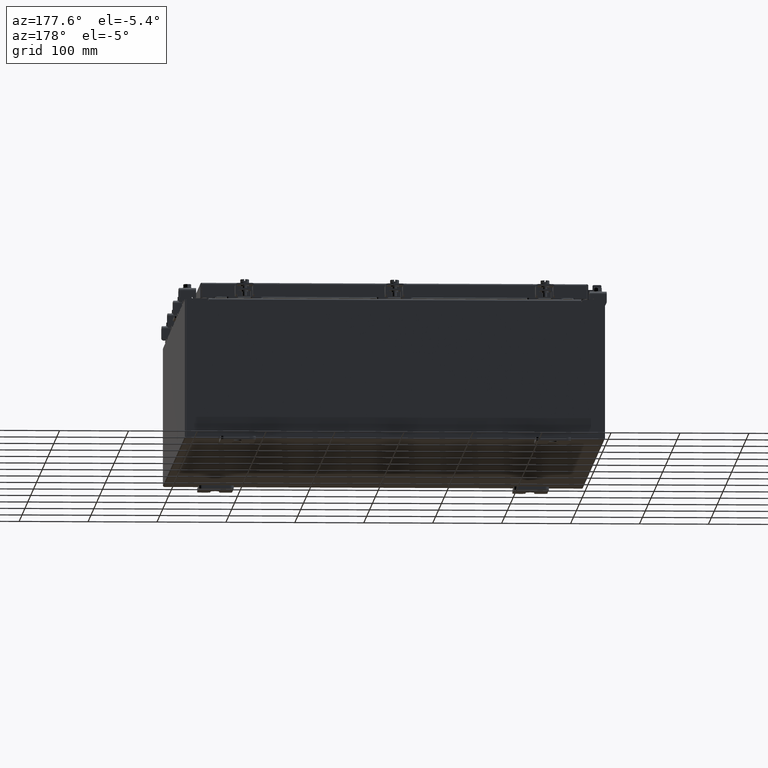
[diagram: clean part render]
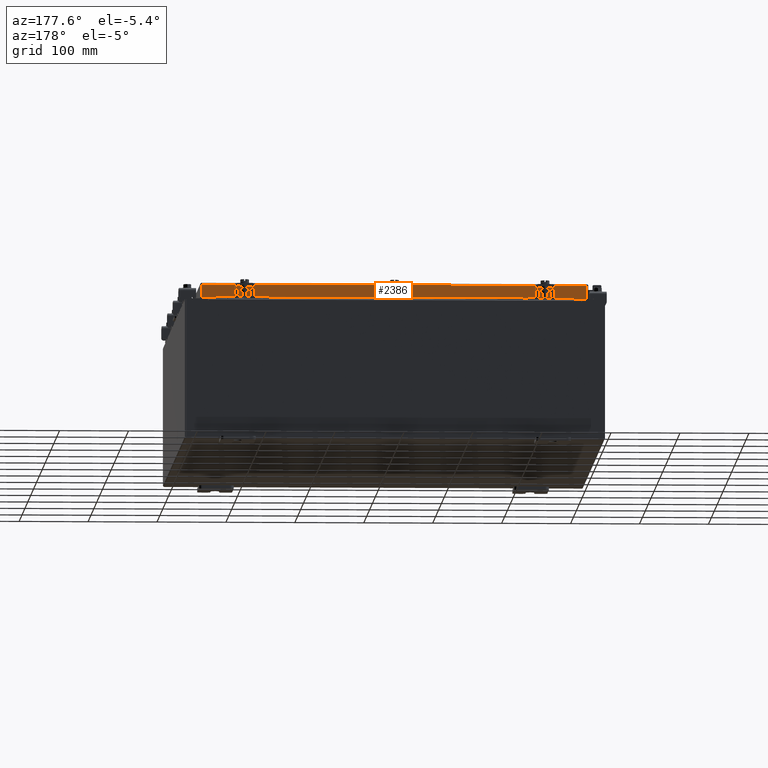
[diagram: same view with one face highlighted and labeled with its STEP entity id]
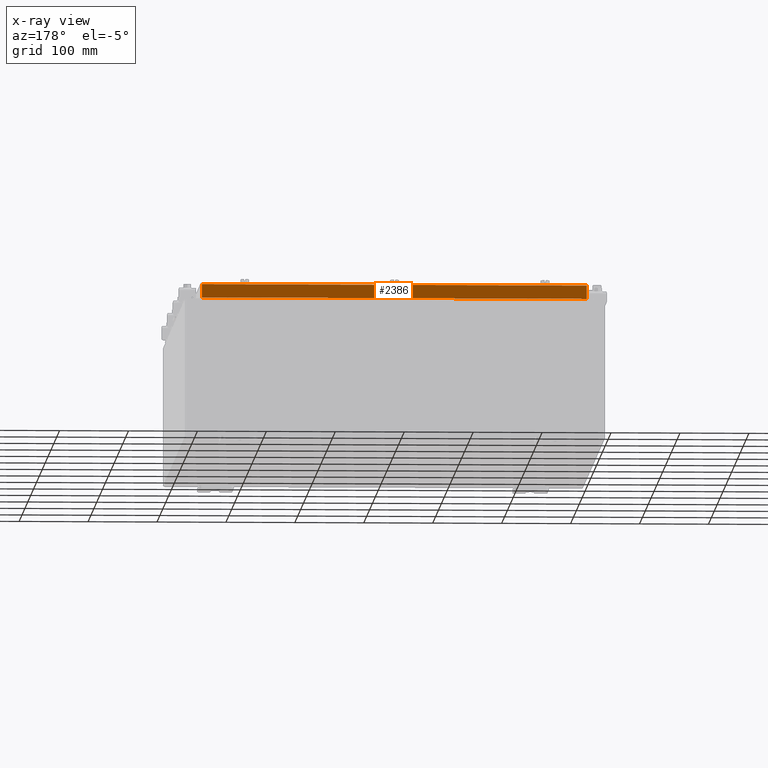
[diagram: x-ray of the same camera — body ghosted, the highlighted face saturated]
A machine part, auxiliary view. The second image highlights one B-rep face of the part: STEP entity #2386.
The next image is the same camera in x-ray: the body ghosted, the highlighted face saturated — about 0% of this face is hidden behind the body in this view.
In plain terms, the highlighted planar face has unit normal (0, -1, -0).
Its self-contained STEP definition (entity closure, byte-faithful):
#47 = CARTESIAN_POINT ( 'NONE',  ( -11.07799999999999900, 14.09400000000000100, -0.8500000000000024200 ) ) ;
#245 = DIRECTION ( 'NONE',  ( 0.0000000000000000000, 2.818880942772350300E-015, -1.000000000000000000 ) ) ;
#654 = CARTESIAN_POINT ( 'NONE',  ( -11.07799999999999900, 14.09400000000000100, -0.8500000000000024200 ) ) ;
#891 = CARTESIAN_POINT ( 'NONE',  ( -10.23915786437626700, 14.09399999999999900, -0.8500000000000033100 ) ) ;
#1543 = DIRECTION ( 'NONE',  ( -0.0000000000000000000, 2.818880942772350300E-015, -1.000000000000000000 ) ) ;
#2386 = ADVANCED_FACE ( 'NONE', ( #18545 ), #2783, .F. ) ;
#2705 = CARTESIAN_POINT ( 'NONE',  ( -4.898647335700341400E-030, 14.09399999999999900, 3.999012166344507700E-014 ) ) ;
#2783 = PLANE ( 'NONE',  #3555 ) ;
#2916 = CARTESIAN_POINT ( 'NONE',  ( 10.23915786437626700, 14.09399999999999900, -0.8500000000000033100 ) ) ;
#3555 = AXIS2_PLACEMENT_3D ( 'NONE', #2705, #16441, #245 ) ;
#3777 = VERTEX_POINT ( 'NONE', #14436 ) ;
#4278 = ORIENTED_EDGE ( 'NONE', *, *, #10582, .F. ) ;
#4347 = LINE ( 'NONE', #47, #9684 ) ;
#5186 = VECTOR ( 'NONE', #18781, 39.37007874015748100 ) ;
#5191 = EDGE_LOOP ( 'NONE', ( #18620, #22112, #4278, #8592, #21766, #13785 ) ) ;
#6226 = CARTESIAN_POINT ( 'NONE',  ( 10.98915786437626900, 14.09399999999999900, 3.999012166344507700E-014 ) ) ;
#6273 = EDGE_CURVE ( 'NONE', #17788, #18555, #13449, .T. ) ;
#6310 = VECTOR ( 'NONE', #20383, 39.37007874015748100 ) ;
#6892 = CARTESIAN_POINT ( 'NONE',  ( -11.07799999999999900, 14.09399999999999900, -0.08770000000000007000 ) ) ;
#8214 = EDGE_CURVE ( 'NONE', #18555, #19763, #18745, .T. ) ;
#8592 = ORIENTED_EDGE ( 'NONE', *, *, #12294, .F. ) ;
#9211 = VECTOR ( 'NONE', #1543, 39.37007874015748100 ) ;
#9684 = VECTOR ( 'NONE', #12592, 39.37007874015748100 ) ;
#10582 = EDGE_CURVE ( 'NONE', #13783, #3777, #4347, .T. ) ;
#10928 = EDGE_CURVE ( 'NONE', #17788, #3777, #13013, .T. ) ;
#11053 = LINE ( 'NONE', #654, #6310 ) ;
#12294 = EDGE_CURVE ( 'NONE', #15505, #13783, #17445, .T. ) ;
#12592 = DIRECTION ( 'NONE',  ( 1.000000000000000000, -4.379057701015054300E-047, 1.233005954894504400E-016 ) ) ;
#13013 = LINE ( 'NONE', #6226, #5186 ) ;
#13449 = LINE ( 'NONE', #6892, #18225 ) ;
#13783 = VERTEX_POINT ( 'NONE', #2916 ) ;
#13785 = ORIENTED_EDGE ( 'NONE', *, *, #8214, .F. ) ;
#14079 = CARTESIAN_POINT ( 'NONE',  ( -10.98915786437626900, 14.09399999999999900, -0.07469999999999978000 ) ) ;
#14436 = CARTESIAN_POINT ( 'NONE',  ( 10.98915786437626700, 14.09400000000000100, -0.8499999999999996400 ) ) ;
#15288 = DIRECTION ( 'NONE',  ( 1.000000000000000000, -0.0000000000000000000, -0.0000000000000000000 ) ) ;
#15505 = VERTEX_POINT ( 'NONE', #16805 ) ;
#15932 = CARTESIAN_POINT ( 'NONE',  ( -10.98915786437626700, 14.09399999999999900, -0.08770000000000007000 ) ) ;
#16441 = DIRECTION ( 'NONE',  ( 3.475696988576941300E-031, -1.000000000000000000, -2.818880942772350300E-015 ) ) ;
#16805 = CARTESIAN_POINT ( 'NONE',  ( -10.23915786437626700, 14.09399999999999900, -0.8500000000000033100 ) ) ;
#17445 = LINE ( 'NONE', #891, #20503 ) ;
#17624 = DIRECTION ( 'NONE',  ( -1.000000000000000000, -3.475696988576942200E-031, -9.473942235605600700E-046 ) ) ;
#17788 = VERTEX_POINT ( 'NONE', #19278 ) ;
#18225 = VECTOR ( 'NONE', #17624, 39.37007874015748100 ) ;
#18545 = FACE_OUTER_BOUND ( 'NONE', #5191, .T. ) ;
#18555 = VERTEX_POINT ( 'NONE', #15932 ) ;
#18620 = ORIENTED_EDGE ( 'NONE', *, *, #6273, .F. ) ;
#18745 = LINE ( 'NONE', #14079, #9211 ) ;
#18781 = DIRECTION ( 'NONE',  ( 0.0000000000000000000, 2.818880942772350300E-015, -1.000000000000000000 ) ) ;
#19120 = CARTESIAN_POINT ( 'NONE',  ( -10.98915786437626900, 14.09400000000000100, -0.8500000000000024200 ) ) ;
#19278 = CARTESIAN_POINT ( 'NONE',  ( 10.98915786437626700, 14.09399999999999900, -0.08770000000000007000 ) ) ;
#19763 = VERTEX_POINT ( 'NONE', #19120 ) ;
#20383 = DIRECTION ( 'NONE',  ( 1.000000000000000000, -4.379057701015054300E-047, 1.233005954894504400E-016 ) ) ;
#20503 = VECTOR ( 'NONE', #15288, 39.37007874015748100 ) ;
#21747 = EDGE_CURVE ( 'NONE', #19763, #15505, #11053, .T. ) ;
#21766 = ORIENTED_EDGE ( 'NONE', *, *, #21747, .F. ) ;
#22112 = ORIENTED_EDGE ( 'NONE', *, *, #10928, .T. ) ;